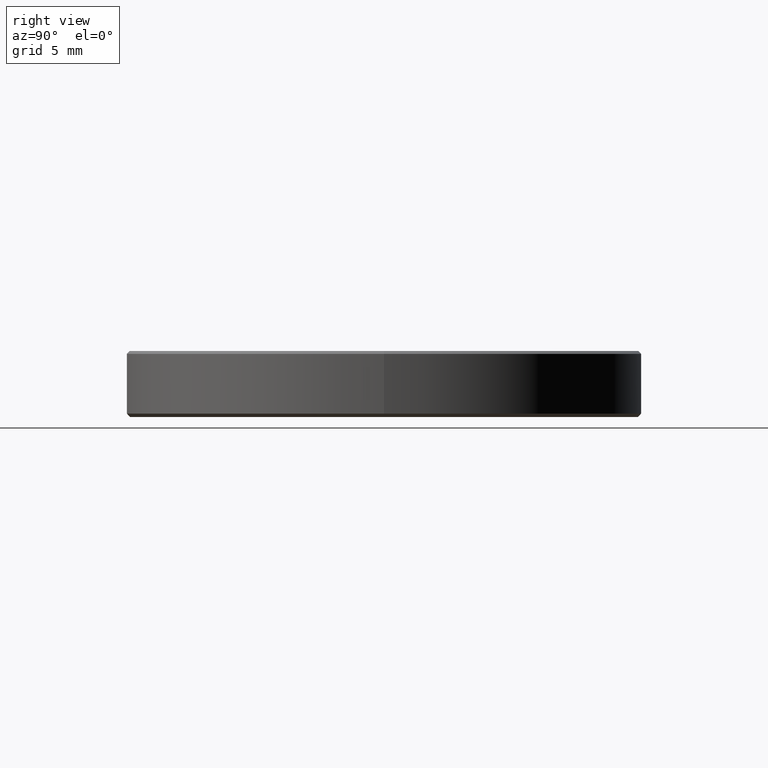
[diagram: clean part render]
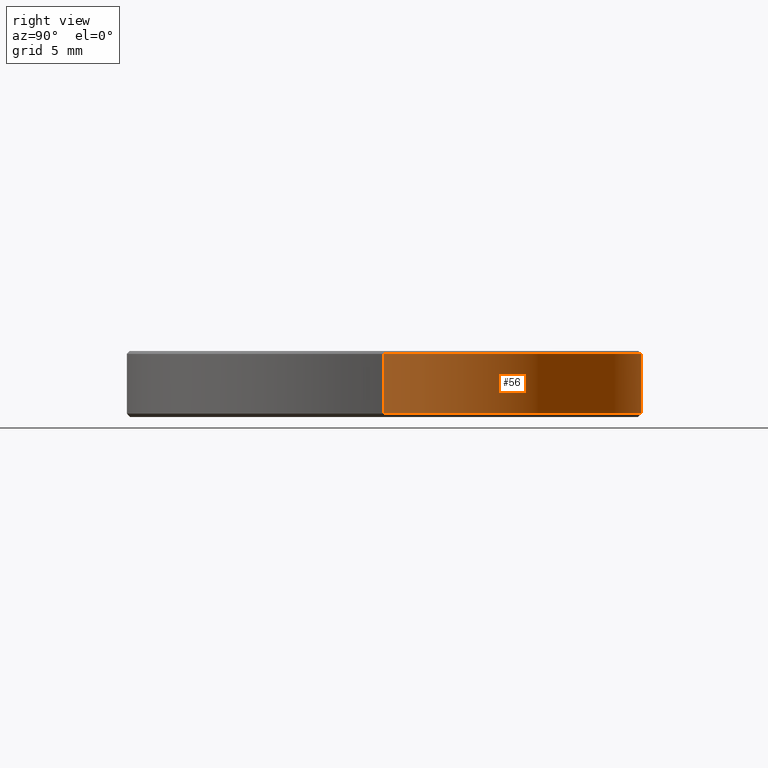
[diagram: same view with one face highlighted and labeled with its STEP entity id]
A machine part, right view. The second image highlights one B-rep face of the part: STEP entity #56.
In plain terms, the highlighted cylindrical surface (partial cylindrical patch) has radius 15 mm, axis along (-0, -0, 1).
Its self-contained STEP definition (entity closure, byte-faithful):
#15 = VERTEX_POINT ( 'NONE', #207 ) ;
#16 = DIRECTION ( 'NONE',  ( -0.000000000000000000, -0.000000000000000000, 1.000000000000000000 ) ) ;
#18 = CIRCLE ( 'NONE', #94, 15.00000000000000000 ) ;
#21 = VERTEX_POINT ( 'NONE', #266 ) ;
#24 = DIRECTION ( 'NONE',  ( -0.000000000000000000, -0.000000000000000000, 1.000000000000000000 ) ) ;
#26 = ORIENTED_EDGE ( 'NONE', *, *, #102, .T. ) ;
#35 = DIRECTION ( 'NONE',  ( -0.000000000000000000, -0.000000000000000000, 1.000000000000000000 ) ) ;
#40 = EDGE_CURVE ( 'NONE', #244, #187, #18, .T. ) ;
#46 = AXIS2_PLACEMENT_3D ( 'NONE', #238, #199, #120 ) ;
#56 = ADVANCED_FACE ( 'NONE', ( #248 ), #152, .T. ) ;
#62 = LINE ( 'NONE', #183, #218 ) ;
#63 = VECTOR ( 'NONE', #35, 1000.000000000000000 ) ;
#92 = CARTESIAN_POINT ( 'NONE',  ( 0.000000000000000000, 0.000000000000000000, 0.2000000000000031197 ) ) ;
#94 = AXIS2_PLACEMENT_3D ( 'NONE', #92, #24, #143 ) ;
#102 = EDGE_CURVE ( 'NONE', #187, #21, #155, .T. ) ;
#109 = ORIENTED_EDGE ( 'NONE', *, *, #40, .T. ) ;
#120 = DIRECTION ( 'NONE',  ( -1.000000000000000000, 0.000000000000000000, 0.000000000000000000 ) ) ;
#132 = CARTESIAN_POINT ( 'NONE',  ( 0.000000000000000000, 0.000000000000000000, 2.500000000000000000 ) ) ;
#143 = DIRECTION ( 'NONE',  ( 1.000000000000000000, 0.000000000000000000, 0.000000000000000000 ) ) ;
#149 = ORIENTED_EDGE ( 'NONE', *, *, #200, .T. ) ;
#152 = CYLINDRICAL_SURFACE ( 'NONE', #239, 15.00000000000000000 ) ;
#155 = LINE ( 'NONE', #215, #63 ) ;
#163 = CARTESIAN_POINT ( 'NONE',  ( -15.00000000000000000, 1.836970198721029589E-15, 0.2000000000000031197 ) ) ;
#174 = DIRECTION ( 'NONE',  ( -0.000000000000000000, -0.000000000000000000, 1.000000000000000000 ) ) ;
#180 = CARTESIAN_POINT ( 'NONE',  ( 15.00000000000000000, 0.000000000000000000, 0.2000000000000031197 ) ) ;
#183 = CARTESIAN_POINT ( 'NONE',  ( 15.00000000000000000, 0.000000000000000000, 2.500000000000000000 ) ) ;
#187 = VERTEX_POINT ( 'NONE', #163 ) ;
#194 = DIRECTION ( 'NONE',  ( 1.000000000000000000, 0.000000000000000000, 0.000000000000000000 ) ) ;
#199 = DIRECTION ( 'NONE',  ( 0.000000000000000000, 0.000000000000000000, -1.000000000000000000 ) ) ;
#200 = EDGE_CURVE ( 'NONE', #21, #15, #235, .T. ) ;
#207 = CARTESIAN_POINT ( 'NONE',  ( 15.00000000000000000, 0.000000000000000000, 3.670000000000020357 ) ) ;
#215 = CARTESIAN_POINT ( 'NONE',  ( -15.00000000000000000, 1.836970198721029589E-15, 2.500000000000000000 ) ) ;
#218 = VECTOR ( 'NONE', #16, 1000.000000000000000 ) ;
#232 = EDGE_CURVE ( 'NONE', #244, #15, #62, .T. ) ;
#235 = CIRCLE ( 'NONE', #46, 15.00000000000000000 ) ;
#238 = CARTESIAN_POINT ( 'NONE',  ( 0.000000000000000000, 0.000000000000000000, 3.670000000000020357 ) ) ;
#239 = AXIS2_PLACEMENT_3D ( 'NONE', #132, #174, #194 ) ;
#244 = VERTEX_POINT ( 'NONE', #180 ) ;
#248 = FACE_OUTER_BOUND ( 'NONE', #264, .T. ) ;
#257 = ORIENTED_EDGE ( 'NONE', *, *, #232, .F. ) ;
#264 = EDGE_LOOP ( 'NONE', ( #109, #26, #149, #257 ) ) ;
#266 = CARTESIAN_POINT ( 'NONE',  ( -15.00000000000000000, 1.836970198721029589E-15, 3.670000000000020357 ) ) ;